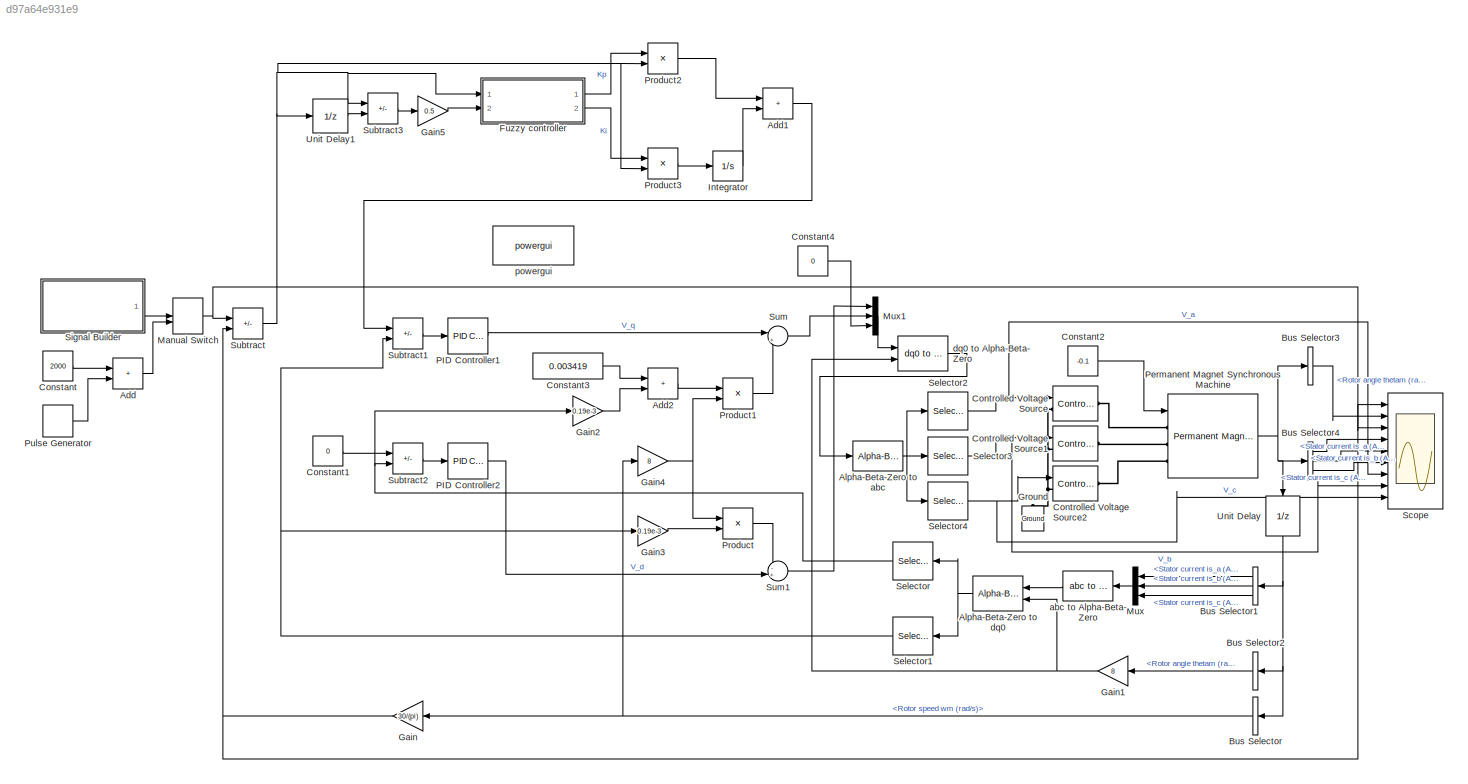
MODEL slx_d97a64e931e9
KIND model
CONFIG AbsTol = auto
CONFIG EnableMultiTasking = off
CONFIG FixedStep = auto
CONFIG MaxStep = auto
CONFIG MinStep = auto
CONFIG RelTol = 1e-3
CONFIG SampleTimeConstraint = Unconstrained
CONFIG Solver = VariableStepAuto
CONFIG SolverName = VariableStepAuto
CONFIG StartTime = 0.0
CONFIG StopTime = 2
BLOCK [Sum] Add
  IconShape = rectangular
  Ports = [2, 1]
BLOCK [Sum] Add1
  IconShape = rectangular
  Ports = [2, 1]
BLOCK [Sum] Add2
  IconShape = rectangular
  Ports = [2, 1]
BLOCK [Reference] Alpha-Beta-Zero to abc  REF=powerlib_meascontrol/Transformations/Alpha-Beta-Zero
to abc
  Ports = [1, 1]
  SourceBlock = powerlib_meascontrol/Transformations/Alpha-Beta-Zero\nto abc
  SourceProductBaseCode = PS
  SourceType = Alpha-Beta-Zero to abc Transformation
BLOCK [Reference] Alpha-Beta-Zero to dq0  REF=powerlib_meascontrol/Transformations/Alpha-Beta-Zero
to dq0
  Ports = [2, 1]
  SourceBlock = powerlib_meascontrol/Transformations/Alpha-Beta-Zero\nto dq0
  SourceProductBaseCode = PS
  SourceType = Alpha-Beta-Zero to dq0 Transformation
BLOCK [BusSelector] Bus Selector
  OutputSignals = Rotor speed wm (rad/s)
  Ports = [1, 1]
BLOCK [BusSelector] Bus Selector1
  OutputSignals = Stator current is_a (A),Stator current is_b (A),Stator current is_c (A)
  Ports = [1, 3]
BLOCK [BusSelector] Bus Selector2
  OutputSignals = Rotor angle thetam (rad)
  Ports = [1, 1]
BLOCK [BusSelector] Bus Selector3
  OutputSignals = Rotor angle thetam (rad)
  Ports = [1, 1]
BLOCK [BusSelector] Bus Selector4
  OutputSignals = Stator current is_a (A),Stator current is_b (A),Stator current is_c (A)
  Ports = [1, 3]
BLOCK [Constant] Constant
  Value = 2000
BLOCK [Constant] Constant1
  Value = 0
BLOCK [Constant] Constant2
  Value = -0.1
BLOCK [Constant] Constant3
  Value = 0.003419
BLOCK [Constant] Constant4
  Value = 0
BLOCK [Reference] Controlled Voltage Source  REF=powerlib/Electrical
Sources/Controlled Voltage Source
  Ports = [1, 0, 0, 0, 0, 1, 1]
  SourceBlock = powerlib/Electrical\nSources/Controlled Voltage Source
  SourceProductBaseCode = PS
  SourceType = Controlled Voltage Source
BLOCK [Reference] Controlled Voltage Source1  REF=powerlib/Electrical
Sources/Controlled Voltage Source
  Ports = [1, 0, 0, 0, 0, 1, 1]
  SourceBlock = powerlib/Electrical\nSources/Controlled Voltage Source
  SourceProductBaseCode = PS
  SourceType = Controlled Voltage Source
BLOCK [Reference] Controlled Voltage Source2  REF=powerlib/Electrical
Sources/Controlled Voltage Source
  Ports = [1, 0, 0, 0, 0, 1, 1]
  SourceBlock = powerlib/Electrical\nSources/Controlled Voltage Source
  SourceProductBaseCode = PS
  SourceType = Controlled Voltage Source
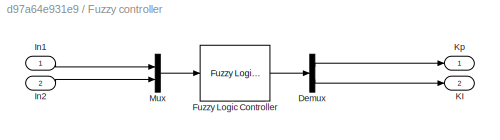
BLOCK [SubSystem] Fuzzy controller
  Ports = [2, 2]
  RequestExecContextInheritance = off
BLOCK [Demux] Fuzzy controller/Demux
  Outputs = 2
  Ports = [1, 2]
BLOCK [Reference] Fuzzy controller/Fuzzy Logic Controller  REF=fuzblock/Fuzzy Logic   (lib defined in mdl_858b3b3e7478)
Controller
  Ports = [1, 1]
  SourceBlock = fuzblock/Fuzzy Logic \nController
  SourceProductBaseCode = FL
  SourceType = Fuzzy Inference System
BLOCK [Inport] Fuzzy controller/In1
BLOCK [Inport] Fuzzy controller/In2
  Port = 2
BLOCK [Outport] Fuzzy controller/KI
  Port = 2
BLOCK [Outport] Fuzzy controller/Kp
BLOCK [Mux] Fuzzy controller/Mux
  DisplayOption = bar
  Inputs = 2
  Ports = [2, 1]
BLOCK [Gain] Gain
  Gain = 30/(pi)
BLOCK [Gain] Gain1
  Gain = 8
BLOCK [Gain] Gain2
  Gain = 0.19e-3
BLOCK [Gain] Gain3
  Gain = 0.19e-3
BLOCK [Gain] Gain4
  Gain = 8
BLOCK [Gain] Gain5
  Gain = 0.5
BLOCK [Reference] Ground  REF=powerlib/Elements/Ground
  NameLocation = right
  Ports = [0, 0, 0, 0, 0, 1]
  SourceBlock = powerlib/Elements/Ground
  SourceProductBaseCode = PS
  SourceType = Ground
BLOCK [Integrator] Integrator
  Ports = [1, 1]
BLOCK [ManualSwitch] Manual Switch
  CurrentSetting = 0
BLOCK [Mux] Mux
  DisplayOption = bar
  Inputs = 3
  Ports = [3, 1]
BLOCK [Mux] Mux1
  DisplayOption = bar
  Inputs = 3
  Ports = [3, 1]
BLOCK [Reference] PID Controller1  REF=simulink/Continuous/PID Controller
  Ports = [1, 1]
  SourceBlock = simulink/Continuous/PID Controller
  SourceProductBaseCode = SL
  SourceType = PID 1dof
BLOCK [Reference] PID Controller2  REF=simulink/Continuous/PID Controller
  Ports = [1, 1]
  SourceBlock = simulink/Continuous/PID Controller
  SourceProductBaseCode = SL
  SourceType = PID 1dof
BLOCK [Reference] Permanent Magnet Synchronous Machine  REF=powerlib/Machines/Permanent Magnet
Synchronous Machine
  Ports = [1, 1, 0, 0, 0, 3]
  SourceBlock = powerlib/Machines/Permanent Magnet\nSynchronous Machine
  SourceProductBaseCode = PS
  SourceType = Permanent Magnet Synchronous Machine
BLOCK [Product] Product
  Ports = [2, 1]
BLOCK [Product] Product1
  Ports = [2, 1]
BLOCK [Product] Product2
  Ports = [2, 1]
BLOCK [Product] Product3
  Ports = [2, 1]
BLOCK [DiscretePulseGenerator] Pulse Generator
  Amplitude = 500
  Period = 1.5
  PhaseDelay = 1.5
  Ports = [0, 1]
  PulseType = Time based
  PulseWidth = 50
BLOCK [Scope] Scope
  Floating = off
  NumInputPorts = 9
  Ports = [9]
  ScopeSpecificationString = Simulink.scopes.TimeScopeBlockCfg('CurrentConfiguration', extmgr.ConfigurationSet(extmgr.Configuration('Core','General UI',true),extmgr.Configuration('Core','Source UI',true),extmgr.Configuration('Sources','WiredSimulink',true),extmgr.Configuration('Visuals','Time Domain',true,'SerializedDisplays',{struct('MinYLimReal','-253.90331','MaxYLimReal','2262.15111','YLabelReal','','MinYLimMag',' 0.00000'...<+7093ch>
BLOCK [Selector] Selector
  IndexOptions = Index vector (dialog)
  Indices = [1]
  InputPortWidth = 3
  OutputSizes = 1
  Ports = [1, 1]
BLOCK [Selector] Selector1
  IndexOptions = Index vector (dialog)
  Indices = [2]
  InputPortWidth = 3
  OutputSizes = 1
  Ports = [1, 1]
BLOCK [Selector] Selector2
  IndexOptions = Index vector (dialog)
  Indices = [1]
  InputPortWidth = 3
  OutputSizes = 1
  Ports = [1, 1]
BLOCK [Selector] Selector3
  IndexOptions = Index vector (dialog)
  Indices = [2]
  InputPortWidth = 3
  OutputSizes = 1
  Ports = [1, 1]
BLOCK [Selector] Selector4
  IndexOptions = Index vector (dialog)
  Indices = [3]
  InputPortWidth = 3
  OutputSizes = 1
  Ports = [1, 1]
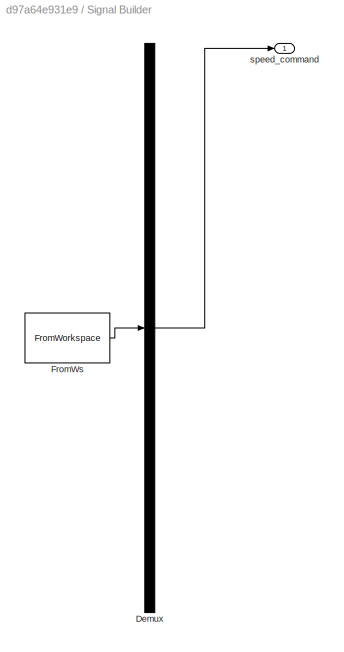
BLOCK [SubSystem] Signal Builder
  ClipboardFcn = sigbuilder_block('clipboard');
  CloseFcn = sigbuilder_block('close');
  ContinueFcn = sigbuilder_block('continue');
  CopyFcn = sigbuilder_block('copy');
  DeleteFcn = sigbuilder_block('delete');
  LoadFcn = sigbuilder_block('load');
  MaskHideContents = on
  ModelCloseFcn = sigbuilder_block('modelClose');
  NameChangeFcn = sigbuilder_block('namechange');
  OpenFcn = sigbuilder_block('open',[292.8 117 550.8 363 ]);
  PauseFcn = sigbuilder_block('pause');
  Ports = [0, 1]
  PreSaveFcn = sigbuilder_block('preSave');
  RequestExecContextInheritance = off
  StartFcn = sigbuilder_block('start');
  StopFcn = sigbuilder_block('stop');
  Tag = STV Subsys
BLOCK [Demux] Signal Builder/Demux
  DisplayOption = none
  Outputs = 1
  Ports = [1, 1]
  Tag = STV Demux
BLOCK [FromWorkspace] Signal Builder/FromWs
  Tag = STV FromWs
  VariableName = tuvar
BLOCK [Outport] Signal Builder/speed_command
  Tag = STV Outport
  VectorParamsAs1DForOutWhenUnconnected = off
BLOCK [Sum] Subtract
  IconShape = rectangular
  Inputs = +-
  Ports = [2, 1]
BLOCK [Sum] Subtract1
  IconShape = rectangular
  Inputs = +-
  Ports = [2, 1]
BLOCK [Sum] Subtract2
  IconShape = rectangular
  Inputs = +-
  Ports = [2, 1]
BLOCK [Sum] Subtract3
  IconShape = rectangular
  Inputs = +-
  Ports = [2, 1]
BLOCK [Sum] Sum
  Inputs = |++
  Ports = [2, 1]
BLOCK [Sum] Sum1
  Inputs = -+|
  Ports = [2, 1]
BLOCK [UnitDelay] Unit Delay
  HasFrameUpgradeWarning = on
  NameLocation = left
  SampleTime = 10e-6
BLOCK [UnitDelay] Unit Delay1
  HasFrameUpgradeWarning = on
  SampleTime = 10e-6
BLOCK [Reference] abc to Alpha-Beta-Zero  REF=powerlib_meascontrol/Transformations/abc to
Alpha-Beta-Zero
  Ports = [1, 1]
  SourceBlock = powerlib_meascontrol/Transformations/abc to\nAlpha-Beta-Zero
  SourceProductBaseCode = PS
  SourceType = abc to Alpha-Beta-Zero Transformation
BLOCK [Reference] dq0 to Alpha-Beta-Zero  REF=powerlib_meascontrol/Transformations/dq0 to
Alpha-Beta-Zero
  Ports = [2, 1]
  SourceBlock = powerlib_meascontrol/Transformations/dq0 to\nAlpha-Beta-Zero
  SourceProductBaseCode = PS
  SourceType = dq0 to Alpha-Beta-Zero Transformation
BLOCK [Reference] powergui  REF=powerlib/powergui
  Ports = []
  Priority = 1
  SourceBlock = powerlib/powergui
  SourceProductBaseCode = PS
  SourceType = PSB option menu block
LINE Add1:1 -> Subtract1:1
LINE Add2:1 -> Product1:1
LINE Add:1 -> Manual Switch:2
NET Alpha-Beta-Zero to abc:1 -> Selector2:1, Selector3:1, Selector4:1
NET Alpha-Beta-Zero to dq0:1 -> Selector1:1, Selector:1
LINE Bus Selector1:1 -> Mux:1
LINE Bus Selector1:2 -> Mux:2
LINE Bus Selector1:3 -> Mux:3
LINE Bus Selector2:1 -> Gain1:1
LINE Bus Selector3:1 -> Scope:2
LINE Bus Selector4:1 -> Scope:4
LINE Bus Selector4:2 -> Scope:5
LINE Bus Selector4:3 -> Scope:6
NET Bus Selector:1 -> Gain4:1, Gain:1
LINE Constant1:1 -> Subtract2:1
LINE Constant2:1 -> Permanent Magnet Synchronous Machine:1
LINE Constant3:1 -> Add2:1
LINE Constant4:1 -> Mux1:3
LINE Constant:1 -> Add:1
LINE Fuzzy controller/Demux:1 -> Fuzzy controller/Kp:1
LINE Fuzzy controller/Demux:2 -> Fuzzy controller/KI:1
LINE Fuzzy controller/Fuzzy Logic Controller:1 -> Fuzzy controller/Demux:1
LINE Fuzzy controller/In1:1 -> Fuzzy controller/Mux:1
LINE Fuzzy controller/In2:1 -> Fuzzy controller/Mux:2
LINE Fuzzy controller/Mux:1 -> Fuzzy controller/Fuzzy Logic Controller:1
LINE Fuzzy controller:1 -> Product2:1
LINE Fuzzy controller:2 -> Product3:1
NET Gain1:1 -> Alpha-Beta-Zero to dq0:2, dq0 to Alpha-Beta-Zero:2
LINE Gain2:1 -> Add2:2
LINE Gain3:1 -> Product:2
NET Gain4:1 -> Product1:2, Product:1
LINE Gain5:1 -> Fuzzy controller:2
NET Gain:1 -> Scope:1, Subtract:2
LINE Integrator:1 -> Add1:2
NET Manual Switch:1 -> Scope:3, Subtract:1
LINE Mux1:1 -> dq0 to Alpha-Beta-Zero:1
LINE Mux:1 -> abc to Alpha-Beta-Zero:1
LINE PID Controller1:1 -> Sum:1
LINE PID Controller2:1 -> Sum1:2
NET Permanent Magnet Synchronous Machine:1 -> Bus Selector3:1, Bus Selector4:1, Unit Delay:1
LINE Product1:1 -> Sum:2
LINE Product2:1 -> Add1:1
LINE Product3:1 -> Integrator:1
LINE Product:1 -> Sum1:1
LINE Pulse Generator:1 -> Add:2
NET Selector1:1 -> Gain3:1, Subtract1:2
NET Selector2:1 -> Controlled Voltage Source:1, Scope:7
NET Selector3:1 -> Controlled Voltage Source1:1, Scope:8
NET Selector4:1 -> Controlled Voltage Source2:1, Scope:9
NET Selector:1 -> Gain2:1, Subtract2:2
LINE Signal Builder:1 -> Manual Switch:1
LINE Subtract1:1 -> PID Controller1:1
LINE Subtract2:1 -> PID Controller2:1
LINE Subtract3:1 -> Gain5:1
NET Subtract:1 -> Fuzzy controller:1, Product2:2, Product3:2, Subtract3:1, Unit Delay1:1
LINE Sum1:1 -> Mux1:1
LINE Sum:1 -> Mux1:2
LINE Unit Delay1:1 -> Subtract3:2
NET Unit Delay:1 -> Bus Selector1:1, Bus Selector2:1, Bus Selector:1
LINE abc to Alpha-Beta-Zero:1 -> Alpha-Beta-Zero to dq0:1
LINE dq0 to Alpha-Beta-Zero:1 -> Alpha-Beta-Zero to abc:1
PNET net1: Controlled Voltage Source1:LConn1 -- Controlled Voltage Source2:LConn1 -- Controlled Voltage Source:LConn1 -- Ground:LConn1
PLINE Controlled Voltage Source1:RConn1 -- Permanent Magnet Synchronous Machine:LConn2
PLINE Controlled Voltage Source2:RConn1 -- Permanent Magnet Synchronous Machine:LConn3
PLINE Controlled Voltage Source:RConn1 -- Permanent Magnet Synchronous Machine:LConn1
note: NET lines group one-source signal fan-out (src -> all destinations, sorted); 1:1 wires keep LINE; PNET lines group multi-terminal physical nets as a canonical sorted terminal list (undirected conserving connections); 2-terminal nets keep the pairwise PLINE form
